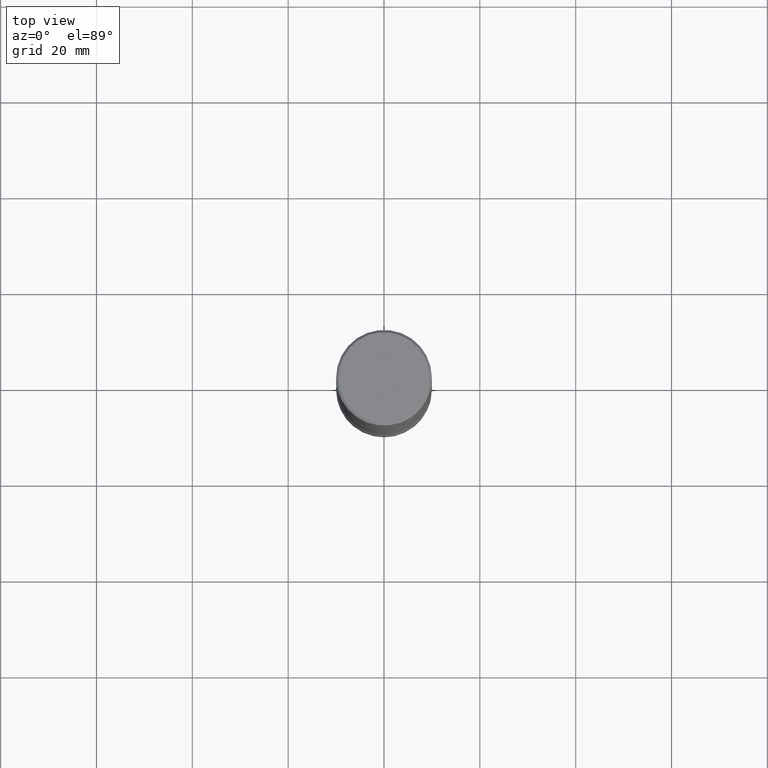
[diagram: clean part render]
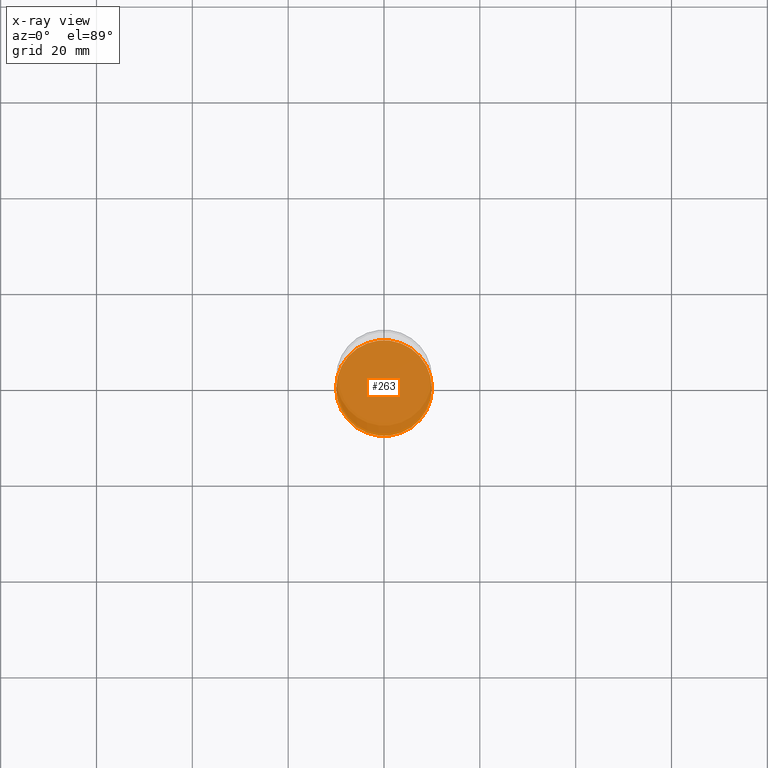
[diagram: x-ray — body ghosted, one internal face saturated and labeled with its STEP entity id]
A machine part, top view, then the same camera in x-ray: the body is ghosted and one INTERNAL B-rep face — a face not visible from any outside direction — is saturated and labeled: STEP entity #263.
In plain terms, the highlighted planar face has unit normal (0, -0, -1).
Its self-contained STEP definition (entity closure, byte-faithful):
#16 = FACE_OUTER_BOUND ( 'NONE', #299, .T. ) ;
#18 = DIRECTION ( 'NONE',  ( -1.000000000000000000, 6.982962677686265922E-15, -4.876176775795935793E-29 ) ) ;
#19 = ORIENTED_EDGE ( 'NONE', *, *, #271, .T. ) ;
#29 = DIRECTION ( 'NONE',  ( 2.445468806185136597E-29, -3.491481338843145583E-15, -1.000000000000000000 ) ) ;
#110 = AXIS2_PLACEMENT_3D ( 'NONE', #499, #415, #18 ) ;
#120 = CIRCLE ( 'NONE', #198, 0.3931999999999991058 ) ;
#133 = AXIS2_PLACEMENT_3D ( 'NONE', #213, #29, #463 ) ;
#198 = AXIS2_PLACEMENT_3D ( 'NONE', #206, #502, #247 ) ;
#206 = CARTESIAN_POINT ( 'NONE',  ( 1.203464108899829379E-28, -1.718227796471488830E-14, -4.921199999999999797 ) ) ;
#213 = CARTESIAN_POINT ( 'NONE',  ( 1.203464108899829379E-28, -1.718227796471488830E-14, -4.921199999999999797 ) ) ;
#238 = CARTESIAN_POINT ( 'NONE',  ( -0.3931999999999991058, -1.438647766170034457E-14, -4.921199999999999797 ) ) ;
#247 = DIRECTION ( 'NONE',  ( -1.000000000000000000, 6.982962677686265922E-15, 0.000000000000000000 ) ) ;
#263 = ADVANCED_FACE ( 'NONE', ( #16 ), #540, .T. ) ;
#271 = EDGE_CURVE ( 'NONE', #559, #470, #518, .T. ) ;
#299 = EDGE_LOOP ( 'NONE', ( #303, #19 ) ) ;
#303 = ORIENTED_EDGE ( 'NONE', *, *, #421, .T. ) ;
#415 = DIRECTION ( 'NONE',  ( 2.438088387897960049E-29, -3.491481338843145188E-15, -1.000000000000000000 ) ) ;
#421 = EDGE_CURVE ( 'NONE', #470, #559, #120, .T. ) ;
#463 = DIRECTION ( 'NONE',  ( -1.000000000000000000, 6.982962677686265922E-15, 0.000000000000000000 ) ) ;
#470 = VERTEX_POINT ( 'NONE', #558 ) ;
#499 = CARTESIAN_POINT ( 'NONE',  ( 2.745700924866353805E-15, 0.3931999999999818973, -4.921200000000001573 ) ) ;
#502 = DIRECTION ( 'NONE',  ( 2.445468806185136597E-29, -3.491481338843145583E-15, -1.000000000000000000 ) ) ;
#518 = CIRCLE ( 'NONE', #133, 0.3931999999999991058 ) ;
#540 = PLANE ( 'NONE',  #110 ) ;
#558 = CARTESIAN_POINT ( 'NONE',  ( 0.3931999999999991058, -1.992862014748325994E-14, -4.921199999999999797 ) ) ;
#559 = VERTEX_POINT ( 'NONE', #238 ) ;